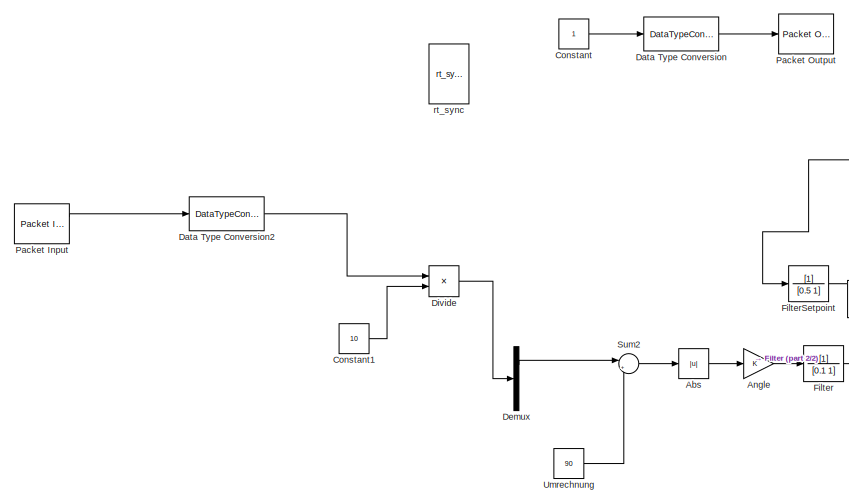
[diagram: root canvas - part 1/2, left side, full height]
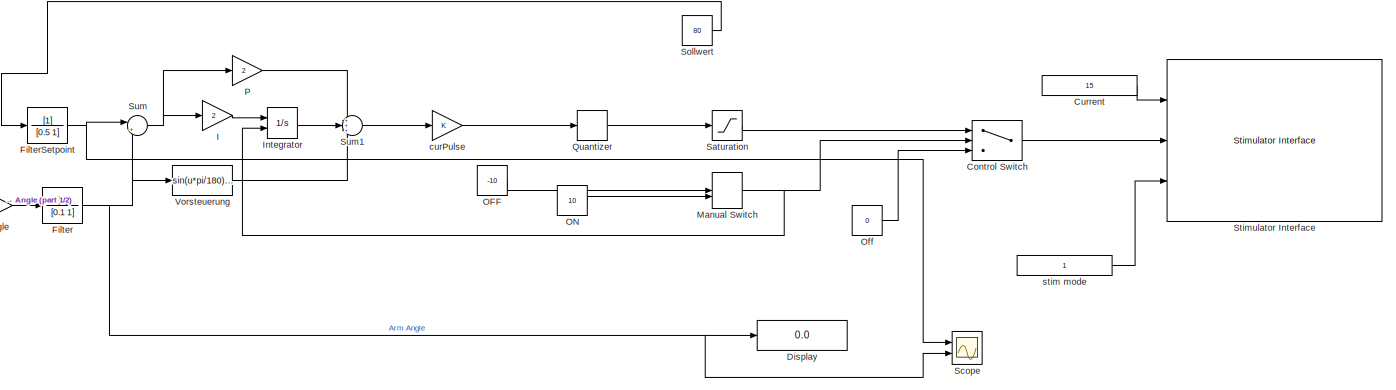
[diagram: root canvas - part 2/2, middle right region]
MODEL slx_5577b677c873
KIND model
CONFIG AbsTol = auto
CONFIG EnableMultiTasking = on
CONFIG FixedStep = ts
CONFIG InitFcn = ts = 0.01;
CONFIG MaxStep = auto
CONFIG MinStep = auto
CONFIG PostLoadFcn = Final_Project_GUI;\n
CONFIG RelTol = 1e-3
CONFIG SampleTimeConstraint = Unconstrained
CONFIG Solver = ode1
CONFIG SolverName = ode1
CONFIG StartFcn = %The GUI handles are by default hidden, turn them on\n%set(0,'ShowHiddenHandles','on');\n%Set up the arguments that will go into the gain block event callback listener\n%blk = 'Final_Project/Angle';\n%event = 'PostOutputs';\n%listener = @updategui;\n%Create the listener\n%h = add_exec_event_listener(blk, event, listener);\nts = 0.01;
CONFIG StartTime = 0.0
CONFIG StopTime = 45
BLOCK [Abs] Abs
  SaturateOnIntegerOverflow = off
BLOCK [Gain] Angle
  OutDataTypeStr = Inherit: Inherit via internal rule
  ParamDataTypeStr = Inherit: Inherit via internal rule
  SaturateOnIntegerOverflow = off
BLOCK [Constant] Constant
BLOCK [Constant] Constant1
  Value = 10
BLOCK [Switch] Control Switch
  Criteria = u2 > Threshold
  InputSameDT = off
  SaturateOnIntegerOverflow = off
  Threshold = 1
BLOCK [Constant] Current
  Value = 15
BLOCK [DataTypeConversion] Data Type Conversion
  OutDataTypeStr = uint8
  RndMeth = Floor
  SaturateOnIntegerOverflow = off
BLOCK [DataTypeConversion] Data Type Conversion2
  OutDataTypeStr = double
  RndMeth = Floor
  SaturateOnIntegerOverflow = off
BLOCK [Demux] Demux
  DisplayOption = bar
  Outputs = 6
  Ports = [1, 6]
BLOCK [Display] Display
  Decimation = 1
  Ports = [1]
BLOCK [Product] Divide
  InputSameDT = off
  Inputs = */
  OutDataTypeStr = Inherit: Inherit via internal rule
  Ports = [2, 1]
  RndMeth = Floor
  SaturateOnIntegerOverflow = off
BLOCK [TransferFcn] Filter
  Denominator = [0.1 1]
BLOCK [TransferFcn] FilterSetpoint
  Denominator = [0.5 1]
BLOCK [Gain] I
  Gain = 2
  OutDataTypeStr = Inherit: Inherit via internal rule
  ParamDataTypeStr = Inherit: Inherit via internal rule
  SaturateOnIntegerOverflow = off
BLOCK [Integrator] Integrator
  ExternalReset = either
  Ports = [2, 1]
BLOCK [ManualSwitch] Manual Switch
  CurrentSetting = 0
BLOCK [Constant] OFF
  Value = -10
BLOCK [Constant] ON
  Value = 10
BLOCK [Constant] Off
  Value = 0
BLOCK [Gain] P
  Gain = 2
  OutDataTypeStr = Inherit: Inherit via internal rule
  ParamDataTypeStr = Inherit: Inherit via internal rule
  SaturateOnIntegerOverflow = off
BLOCK [Reference] Packet Input  REF=sldrtlib/Packet Input
  AttributesFormatString = Standard Devices\nUDP Protocol [FACh]
  Ports = [0, 2]
  SourceBlock = sldrtlib/Packet Input
  SourceType = Simulink Desktop Real-Time Packet Input
BLOCK [Reference] Packet Output  REF=sldrtlib/Packet Output
  AttributesFormatString = Standard Devices\nUDP Protocol [FACh]
  Ports = [1, 1]
  SourceBlock = sldrtlib/Packet Output
  SourceType = Simulink Desktop Real-Time Packet Output
BLOCK [Quantizer] Quantizer
  QuantizationInterval = 10
BLOCK [Saturate] Saturation
  InputPortMap = u0
  LowerLimit = 0
  Ports = [1, 1]
  UpperLimit = 400
BLOCK [Scope] Scope
  NumInputPorts = 2
  Ports = [2]
  ScopeSpecificationString = Simulink.scopes.TimeScopeBlockCfg('CurrentConfiguration', extmgr.ConfigurationSet(extmgr.Configuration('Core','General UI',true),extmgr.Configuration('Core','Source UI',true),extmgr.Configuration('Sources','WiredSimulink',true,'DataLogging',true),extmgr.Configuration('Visuals','Time Domain',true,'SerializedDisplays',{struct('MinYLimReal','-10.00000','MaxYLimReal','90.00000','YLabelReal','','MinYLi...<+1419ch>
BLOCK [Constant] Sollwert
  Value = 80
BLOCK [Reference] Stimulator Interface  REF=ScienceStimHasomed_Lib/Stimulator Interface
  Ports = [3, 1]
  SourceBlock = ScienceStimHasomed_Lib/Stimulator Interface
  SourceType = Stimulator Interface (RehaStim - Hasomed GmbH)
BLOCK [Sum] Sum
  IconShape = round
  InputSameDT = off
  Inputs = |+-
  OutDataTypeStr = Inherit: Inherit via internal rule
  Ports = [2, 1]
  SaturateOnIntegerOverflow = off
BLOCK [Sum] Sum1
  IconShape = round
  InputSameDT = off
  Inputs = +++
  OutDataTypeStr = Inherit: Inherit via internal rule
  Ports = [3, 1]
  SaturateOnIntegerOverflow = off
BLOCK [Sum] Sum2
  IconShape = round
  InputSameDT = off
  Inputs = |+-
  OutDataTypeStr = Inherit: Inherit via internal rule
  Ports = [2, 1]
  SaturateOnIntegerOverflow = off
BLOCK [Constant] Umrechnung
  Value = 90
BLOCK [Fcn] Vorsteuerung
  Expr = sin(u*pi/180)*0.162*1.5*9.81/0.015*1
BLOCK [Gain] curPulse
  OutDataTypeStr = Inherit: Inherit via internal rule
  ParamDataTypeStr = Inherit: Inherit via internal rule
  SaturateOnIntegerOverflow = off
BLOCK [Reference] rt_sync  REF=rtsync_lib/rt_sync  (lib defined in mdl_0a870ea049d0)
  Ports = [0, 1]
  SourceBlock = rtsync_lib/rt_sync
BLOCK [Constant] stim mode
LINE Abs:1 -> Angle:1
LINE Angle:1 -> Filter:1
LINE Constant1:1 -> Divide:2
LINE Constant:1 -> Data Type Conversion:1
LINE Control Switch:1 -> Stimulator Interface:2
LINE Current:1 -> Stimulator Interface:1
LINE Data Type Conversion2:1 -> Divide:1
LINE Data Type Conversion:1 -> Packet Output:1
LINE Demux:2 -> Sum2:1
LINE Divide:1 -> Demux:1
NET Filter:1 -> Display:1, Scope:2, Sum:2, Vorsteuerung:1
NET FilterSetpoint:1 -> Scope:1, Sum:1
LINE I:1 -> Integrator:1
LINE Integrator:1 -> Sum1:2
NET Manual Switch:1 -> Control Switch:2, Integrator:2
LINE OFF:1 -> Manual Switch:1
LINE ON:1 -> Manual Switch:2
LINE Off:1 -> Control Switch:3
LINE P:1 -> Sum1:1
LINE Packet Input:1 -> Data Type Conversion2:1
LINE Quantizer:1 -> Saturation:1
LINE Saturation:1 -> Control Switch:1
LINE Sollwert:1 -> FilterSetpoint:1
LINE Sum1:1 -> curPulse:1
LINE Sum2:1 -> Abs:1
NET Sum:1 -> I:1, P:1
LINE Umrechnung:1 -> Sum2:2
LINE Vorsteuerung:1 -> Sum1:3
LINE curPulse:1 -> Quantizer:1
LINE stim mode:1 -> Stimulator Interface:3
note: NET lines group one-source signal fan-out (src -> all destinations, sorted); 1:1 wires keep LINE
